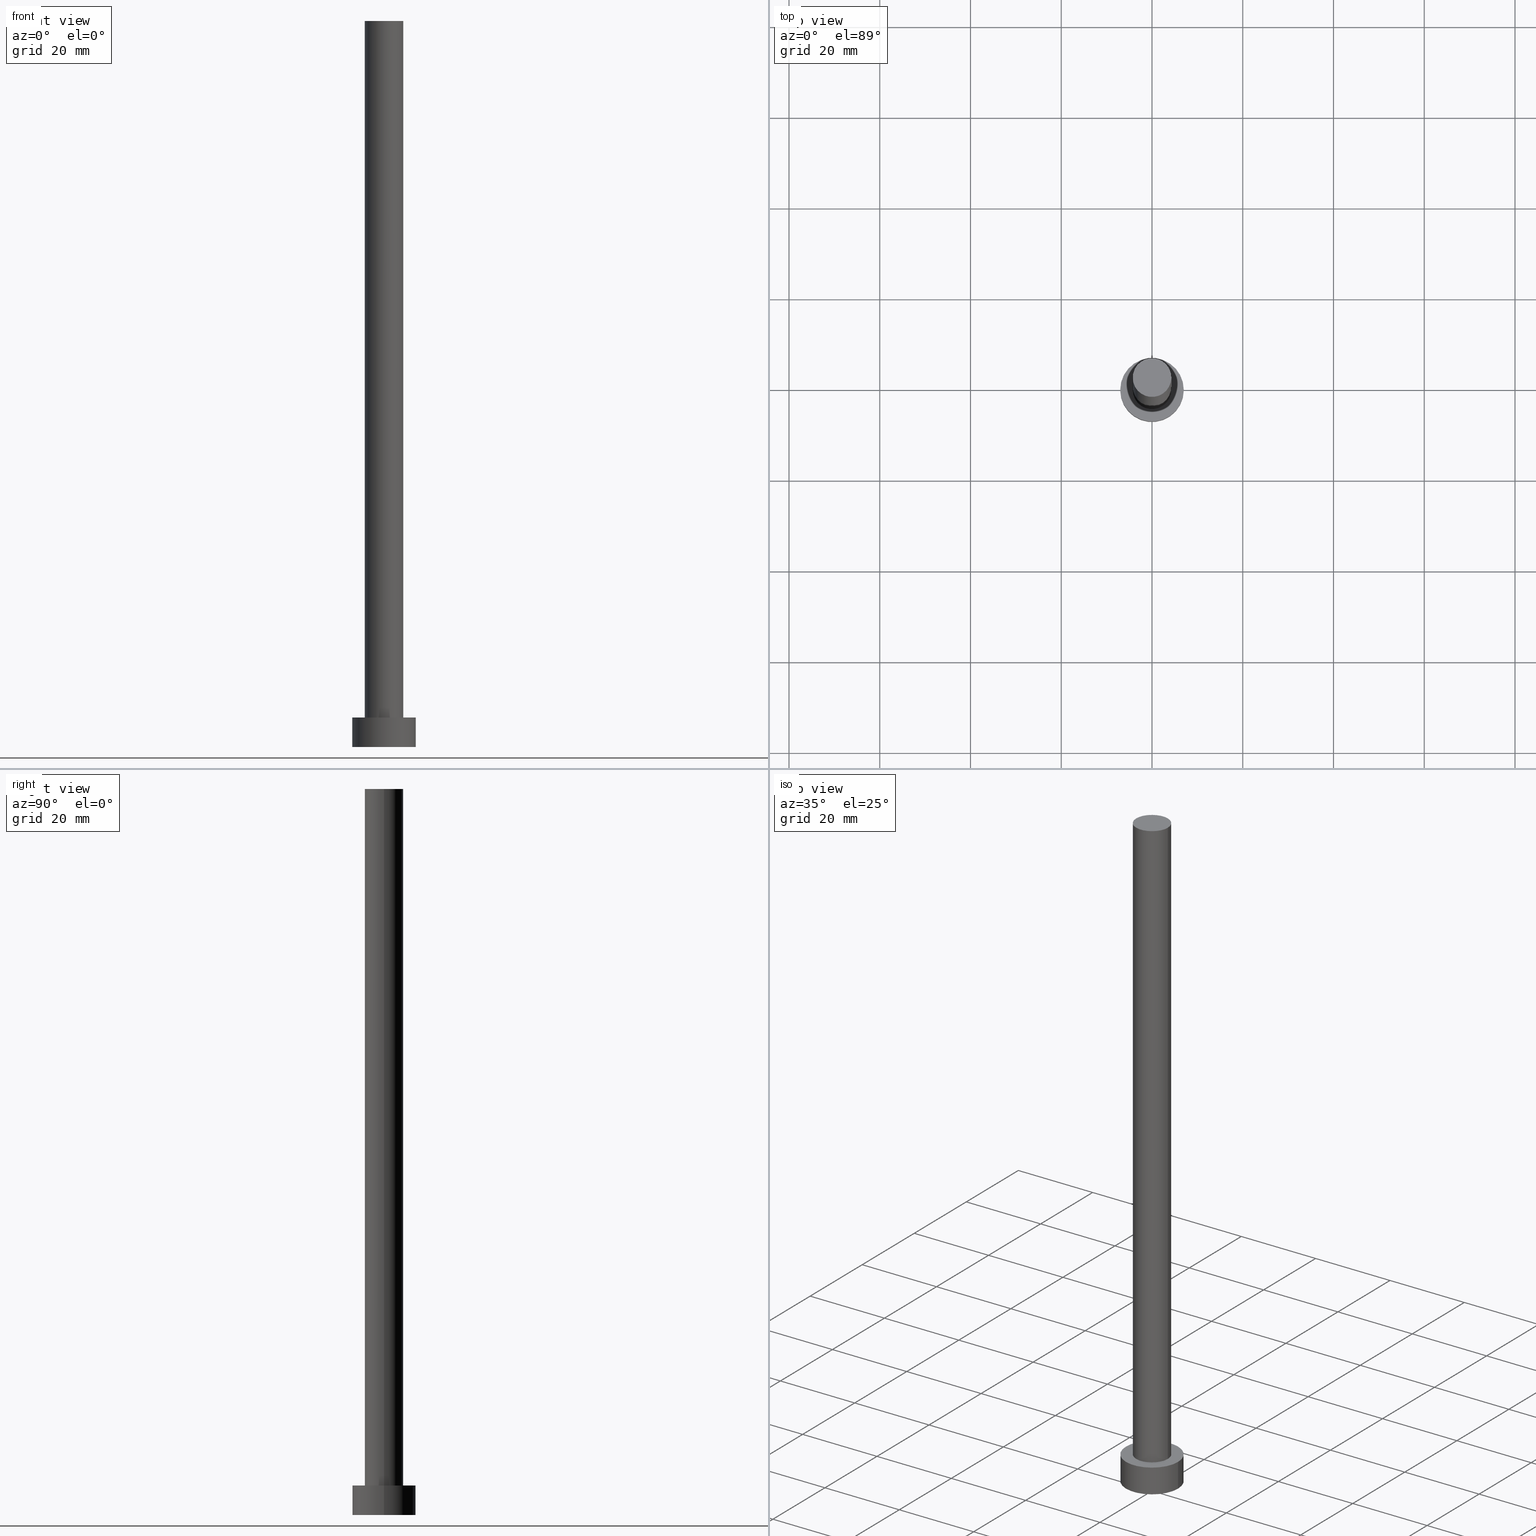
[diagram: canonical four-view strip — front | top / right | iso, engineering-drawing reading convention]
A machine part, canonical four-view strip (front | top / right | iso — engineering-drawing reading convention). The complete STEP part file that produces these views, byte-faithful:
ISO-10303-21;
HEADER;
FILE_DESCRIPTION (( 'STEP AP203' ),
    '1' );
FILE_NAME ('204a.STEP',
    '2023-02-13T13:48:37',
    ( '' ),
    ( '' ),
    'SwSTEP 2.0',
    'SolidWorks 2019',
    '' );
FILE_SCHEMA (( 'CONFIG_CONTROL_DESIGN' ));
ENDSEC;

DATA;
#1 = DIRECTION ( 'NONE',  ( 0.000000000000000000, 0.000000000000000000, 1.000000000000000000 ) ) ;
#2 = CC_DESIGN_PERSON_AND_ORGANIZATION_ASSIGNMENT ( #95, #231, ( #78 ) ) ;
#3 = PERSON ( 'NEUR�EN�', 'NEUR�EN�', 'NEUR�EN�', ('NEUR�EN�'), ('NEUR�EN�'), ('NEUR�EN�') ) ;
#4 = ORIENTED_EDGE ( 'NONE', *, *, #179, .F. ) ;
#5 = ORIENTED_EDGE ( 'NONE', *, *, #232, .T. ) ;
#6 = VERTEX_POINT ( 'NONE', #244 ) ;
#7 = ADVANCED_FACE ( 'NONE', ( #65 ), #26, .T. ) ;
#8 = CIRCLE ( 'NONE', #207, 4.250000000000000000 ) ;
#9 = PLANE ( 'NONE',  #253 ) ;
#10 = APPROVAL_ROLE ( '' ) ;
#11 = AXIS2_PLACEMENT_3D ( 'NONE', #165, #100, #216 ) ;
#12 = DIRECTION ( 'NONE',  ( 0.000000000000000000, 0.000000000000000000, 1.000000000000000000 ) ) ;
#13 = COORDINATED_UNIVERSAL_TIME_OFFSET ( 1, 0, .AHEAD. ) ;
#14 = CARTESIAN_POINT ( 'NONE',  ( 0.000000000000000000, 0.000000000000000000, 6.500000000000000000 ) ) ;
#15 = APPROVAL ( #224, 'NEUR�EN�' ) ;
#16 = VECTOR ( 'NONE', #151, 1000.000000000000000 ) ;
#17 = DIRECTION ( 'NONE',  ( 0.000000000000000000, 0.000000000000000000, 1.000000000000000000 ) ) ;
#18 = ADVANCED_FACE ( 'NONE', ( #109 ), #227, .T. ) ;
#19 = DIRECTION ( 'NONE',  ( 0.000000000000000000, 0.000000000000000000, 1.000000000000000000 ) ) ;
#20 = APPROVAL_PERSON_ORGANIZATION ( #60, #238, #97 ) ;
#21 = CARTESIAN_POINT ( 'NONE',  ( -4.250000000000000000, 0.000000000000000000, 160.0000000000000000 ) ) ;
#22 = AXIS2_PLACEMENT_3D ( 'NONE', #237, #144, #62 ) ;
#23 = VERTEX_POINT ( 'NONE', #132 ) ;
#24 = EDGE_LOOP ( 'NONE', ( #127, #149 ) ) ;
#25 = CC_DESIGN_DATE_AND_TIME_ASSIGNMENT ( #115, #225, ( #107 ) ) ;
#26 = CYLINDRICAL_SURFACE ( 'NONE', #252, 4.250000000000000000 ) ;
#27 = FACE_OUTER_BOUND ( 'NONE', #106, .T. ) ;
#28 = AXIS2_PLACEMENT_3D ( 'NONE', #118, #19, #163 ) ;
#29 = LOCAL_TIME ( 14, 48, 37.00000000000000000, #13 ) ;
#30 = CALENDAR_DATE ( 2023, 13, 2 ) ;
#31 = LINE ( 'NONE', #72, #164 ) ;
#32 = COORDINATED_UNIVERSAL_TIME_OFFSET ( 1, 0, .AHEAD. ) ;
#33 = ADVANCED_FACE ( 'NONE', ( #209 ), #251, .T. ) ;
#34 = DIRECTION ( 'NONE',  ( -1.000000000000000000, 0.000000000000000000, 0.000000000000000000 ) ) ;
#35 =( NAMED_UNIT ( * ) SI_UNIT ( $, .STERADIAN. ) SOLID_ANGLE_UNIT ( ) );
#36 = COORDINATED_UNIVERSAL_TIME_OFFSET ( 1, 0, .AHEAD. ) ;
#37 = DIRECTION ( 'NONE',  ( -1.000000000000000000, 0.000000000000000000, 0.000000000000000000 ) ) ;
#38 = DIRECTION ( 'NONE',  ( -0.000000000000000000, -0.000000000000000000, -1.000000000000000000 ) ) ;
#39 = SHAPE_DEFINITION_REPRESENTATION ( #162, #122 ) ;
#40 = FACE_OUTER_BOUND ( 'NONE', #188, .T. ) ;
#41 = LINE ( 'NONE', #21, #16 ) ;
#42 = ORIENTED_EDGE ( 'NONE', *, *, #91, .F. ) ;
#43 = CC_DESIGN_APPROVAL ( #238, ( #154 ) ) ;
#44 = CC_DESIGN_PERSON_AND_ORGANIZATION_ASSIGNMENT ( #59, #213, ( #154 ) ) ;
#45 = ORIENTED_EDGE ( 'NONE', *, *, #128, .F. ) ;
#46 = LOCAL_TIME ( 14, 48, 37.00000000000000000, #206 ) ;
#47 = VERTEX_POINT ( 'NONE', #67 ) ;
#48 = ADVANCED_FACE ( 'NONE', ( #89 ), #71, .T. ) ;
#49 = DIRECTION ( 'NONE',  ( -0.000000000000000000, -0.000000000000000000, -1.000000000000000000 ) ) ;
#50 = APPROVAL_STATUS ( 'not_yet_approved' ) ;
#51 =( NAMED_UNIT ( * ) PLANE_ANGLE_UNIT ( ) SI_UNIT ( $, .RADIAN. ) );
#52 = EDGE_CURVE ( 'NONE', #108, #243, #204, .T. ) ;
#53 = CARTESIAN_POINT ( 'NONE',  ( 0.000000000000000000, 0.000000000000000000, 0.000000000000000000 ) ) ;
#54 = CARTESIAN_POINT ( 'NONE',  ( 0.000000000000000000, 0.000000000000000000, 0.000000000000000000 ) ) ;
#55 = AXIS2_PLACEMENT_3D ( 'NONE', #14, #17, #176 ) ;
#56 = PRODUCT ( '204a', '204a', '', ( #208 ) ) ;
#57 = DATE_TIME_ROLE ( 'classification_date' ) ;
#58 = CARTESIAN_POINT ( 'NONE',  ( -7.000000000000000000, 0.000000000000000000, 6.500000000000000000 ) ) ;
#59 = PERSON_AND_ORGANIZATION ( #3, #241 ) ;
#60 = PERSON_AND_ORGANIZATION ( #3, #241 ) ;
#61 = CARTESIAN_POINT ( 'NONE',  ( 0.000000000000000000, 0.000000000000000000, 0.000000000000000000 ) ) ;
#62 = DIRECTION ( 'NONE',  ( 1.000000000000000000, 0.000000000000000000, 0.000000000000000000 ) ) ;
#63 = AXIS2_PLACEMENT_3D ( 'NONE', #61, #230, #120 ) ;
#64 = EDGE_LOOP ( 'NONE', ( #45, #169, #184, #185 ) ) ;
#65 = FACE_OUTER_BOUND ( 'NONE', #104, .T. ) ;
#66 = CALENDAR_DATE ( 2023, 13, 2 ) ;
#67 = CARTESIAN_POINT ( 'NONE',  ( -4.250000000000000000, 0.000000000000000000, 160.0000000000000000 ) ) ;
#68 = COORDINATED_UNIVERSAL_TIME_OFFSET ( 1, 0, .AHEAD. ) ;
#69 = AXIS2_PLACEMENT_3D ( 'NONE', #54, #136, #245 ) ;
#70 = PERSON_AND_ORGANIZATION_ROLE ( 'design_owner' ) ;
#71 = CYLINDRICAL_SURFACE ( 'NONE', #145, 4.250000000000000000 ) ;
#72 = CARTESIAN_POINT ( 'NONE',  ( 4.250000000000000000, 5.204748896376250699E-16, 160.0000000000000000 ) ) ;
#73 = CLOSED_SHELL ( 'NONE', ( #7, #148, #18, #81, #197, #48, #33 ) ) ;
#74 = PLANE ( 'NONE',  #28 ) ;
#75 = CALENDAR_DATE ( 2023, 13, 2 ) ;
#76 = DIRECTION ( 'NONE',  ( -0.000000000000000000, -0.000000000000000000, -1.000000000000000000 ) ) ;
#77 = SECURITY_CLASSIFICATION_LEVEL ( 'unclassified' ) ;
#78 = PRODUCT_DEFINITION_FORMATION_WITH_SPECIFIED_SOURCE ( 'LIBOVOLN�', '', #56, .NOT_KNOWN. ) ;
#79 = DIRECTION ( 'NONE',  ( -1.000000000000000000, 0.000000000000000000, 0.000000000000000000 ) ) ;
#80 = ORIENTED_EDGE ( 'NONE', *, *, #174, .F. ) ;
#81 = ADVANCED_FACE ( 'NONE', ( #121, #215 ), #74, .T. ) ;
#82 = ORIENTED_EDGE ( 'NONE', *, *, #161, .F. ) ;
#83 = APPLICATION_CONTEXT ( 'configuration controlled 3d designs of mechanical parts and assemblies' ) ;
#84 = EDGE_LOOP ( 'NONE', ( #125, #80 ) ) ;
#85 = CC_DESIGN_PERSON_AND_ORGANIZATION_ASSIGNMENT ( #92, #70, ( #56 ) ) ;
#86 = ORIENTED_EDGE ( 'NONE', *, *, #123, .F. ) ;
#87 = EDGE_CURVE ( 'NONE', #103, #242, #221, .T. ) ;
#88 =( LENGTH_UNIT ( ) NAMED_UNIT ( * ) SI_UNIT ( .MILLI., .METRE. ) );
#89 = FACE_OUTER_BOUND ( 'NONE', #168, .T. ) ;
#90 = DIRECTION ( 'NONE',  ( 1.000000000000000000, 0.000000000000000000, -0.000000000000000000 ) ) ;
#91 = EDGE_CURVE ( 'NONE', #47, #23, #173, .T. ) ;
#92 = PERSON_AND_ORGANIZATION ( #3, #241 ) ;
#93 = CARTESIAN_POINT ( 'NONE',  ( 0.000000000000000000, 0.000000000000000000, 160.0000000000000000 ) ) ;
#94 = CIRCLE ( 'NONE', #22, 4.250000000000000000 ) ;
#95 = PERSON_AND_ORGANIZATION ( #3, #241 ) ;
#96 = LINE ( 'NONE', #235, #131 ) ;
#97 = APPROVAL_ROLE ( '' ) ;
#98 = AXIS2_PLACEMENT_3D ( 'NONE', #114, #129, #205 ) ;
#99 = DIRECTION ( 'NONE',  ( 0.000000000000000000, 0.000000000000000000, 1.000000000000000000 ) ) ;
#100 = DIRECTION ( 'NONE',  ( 0.000000000000000000, 0.000000000000000000, 1.000000000000000000 ) ) ;
#101 = APPROVAL ( #50, 'NEUR�EN�' ) ;
#102 = ORIENTED_EDGE ( 'NONE', *, *, #157, .F. ) ;
#103 = VERTEX_POINT ( 'NONE', #138 ) ;
#104 = EDGE_LOOP ( 'NONE', ( #82, #219, #202, #4 ) ) ;
#105 = AXIS2_PLACEMENT_3D ( 'NONE', #249, #49, #34 ) ;
#106 = EDGE_LOOP ( 'NONE', ( #166, #239 ) ) ;
#107 = PRODUCT_DEFINITION ( 'NEZN�M�', '', #78, #236 ) ;
#108 = VERTEX_POINT ( 'NONE', #58 ) ;
#109 = FACE_OUTER_BOUND ( 'NONE', #64, .T. ) ;
#110 = DIRECTION ( 'NONE',  ( -0.000000000000000000, -0.000000000000000000, -1.000000000000000000 ) ) ;
#111 = CIRCLE ( 'NONE', #11, 7.000000000000000000 ) ;
#112 = EDGE_CURVE ( 'NONE', #222, #6, #139, .T. ) ;
#113 = DATE_AND_TIME ( #30, #46 ) ;
#114 = CARTESIAN_POINT ( 'NONE',  ( 0.000000000000000000, 0.000000000000000000, 160.0000000000000000 ) ) ;
#115 = DATE_AND_TIME ( #210, #234 ) ;
#116 = CARTESIAN_POINT ( 'NONE',  ( -4.250000000000000000, 0.000000000000000000, 6.500000000000000000 ) ) ;
#117 = CARTESIAN_POINT ( 'NONE',  ( 0.000000000000000000, 0.000000000000000000, 6.500000000000000000 ) ) ;
#118 = CARTESIAN_POINT ( 'NONE',  ( 0.000000000000000000, 0.000000000000000000, 6.500000000000000000 ) ) ;
#119 = APPROVAL_STATUS ( 'not_yet_approved' ) ;
#120 = DIRECTION ( 'NONE',  ( 1.000000000000000000, 0.000000000000000000, 0.000000000000000000 ) ) ;
#121 = FACE_BOUND ( 'NONE', #84, .T. ) ;
#122 = ADVANCED_BREP_SHAPE_REPRESENTATION ( '204a', ( #211, #186 ), #167 ) ;
#123 = EDGE_CURVE ( 'NONE', #108, #103, #96, .T. ) ;
#124 = DIRECTION ( 'NONE',  ( 1.000000000000000000, 0.000000000000000000, 0.000000000000000000 ) ) ;
#125 = ORIENTED_EDGE ( 'NONE', *, *, #112, .F. ) ;
#126 = ORIENTED_EDGE ( 'NONE', *, *, #128, .T. ) ;
#127 = ORIENTED_EDGE ( 'NONE', *, *, #91, .T. ) ;
#128 = EDGE_CURVE ( 'NONE', #243, #242, #137, .T. ) ;
#129 = DIRECTION ( 'NONE',  ( 0.000000000000000000, 0.000000000000000000, 1.000000000000000000 ) ) ;
#130 = DIRECTION ( 'NONE',  ( 0.000000000000000000, 0.000000000000000000, 1.000000000000000000 ) ) ;
#131 = VECTOR ( 'NONE', #76, 1000.000000000000000 ) ;
#132 = CARTESIAN_POINT ( 'NONE',  ( 4.250000000000000000, 5.204748896376250699E-16, 160.0000000000000000 ) ) ;
#133 = PRODUCT_RELATED_PRODUCT_CATEGORY ( 'detail', '', ( #56 ) ) ;
#134 = APPROVAL_DATE_TIME ( #228, #15 ) ;
#135 = DIRECTION ( 'NONE',  ( -0.000000000000000000, -0.000000000000000000, -1.000000000000000000 ) ) ;
#136 = DIRECTION ( 'NONE',  ( 0.000000000000000000, 0.000000000000000000, 1.000000000000000000 ) ) ;
#137 = LINE ( 'NONE', #142, #201 ) ;
#138 = CARTESIAN_POINT ( 'NONE',  ( -7.000000000000000000, 0.000000000000000000, 0.000000000000000000 ) ) ;
#139 = CIRCLE ( 'NONE', #55, 4.250000000000000000 ) ;
#140 = DATE_AND_TIME ( #75, #182 ) ;
#141 = AXIS2_PLACEMENT_3D ( 'NONE', #212, #38, #79 ) ;
#142 = CARTESIAN_POINT ( 'NONE',  ( 7.000000000000000000, 8.572527594031471218E-16, 6.500000000000000000 ) ) ;
#143 = PERSON_AND_ORGANIZATION ( #3, #241 ) ;
#144 = DIRECTION ( 'NONE',  ( 0.000000000000000000, 0.000000000000000000, 1.000000000000000000 ) ) ;
#145 = AXIS2_PLACEMENT_3D ( 'NONE', #158, #135, #37 ) ;
#146 = ORIENTED_EDGE ( 'NONE', *, *, #52, .T. ) ;
#147 = ORIENTED_EDGE ( 'NONE', *, *, #193, .F. ) ;
#148 = ADVANCED_FACE ( 'NONE', ( #40 ), #177, .T. ) ;
#149 = ORIENTED_EDGE ( 'NONE', *, *, #161, .T. ) ;
#150 = APPROVAL_PERSON_ORGANIZATION ( #153, #101, #10 ) ;
#151 = DIRECTION ( 'NONE',  ( -0.000000000000000000, -0.000000000000000000, -1.000000000000000000 ) ) ;
#152 = DIRECTION ( 'NONE',  ( 1.000000000000000000, 0.000000000000000000, 0.000000000000000000 ) ) ;
#153 = PERSON_AND_ORGANIZATION ( #3, #241 ) ;
#154 = SECURITY_CLASSIFICATION ( '', '', #77 ) ;
#155 = DIRECTION ( 'NONE',  ( -1.000000000000000000, 0.000000000000000000, 0.000000000000000000 ) ) ;
#156 = APPLICATION_PROTOCOL_DEFINITION ( 'international standard', 'config_control_design', 1994, #214 ) ;
#157 = EDGE_CURVE ( 'NONE', #243, #108, #111, .T. ) ;
#158 = CARTESIAN_POINT ( 'NONE',  ( 0.000000000000000000, 0.000000000000000000, 160.0000000000000000 ) ) ;
#159 = CARTESIAN_POINT ( 'NONE',  ( 0.000000000000000000, 0.000000000000000000, 0.000000000000000000 ) ) ;
#160 = APPROVAL_PERSON_ORGANIZATION ( #170, #15, #203 ) ;
#161 = EDGE_CURVE ( 'NONE', #23, #47, #8, .T. ) ;
#162 = PRODUCT_DEFINITION_SHAPE ( 'NONE', 'NONE',  #107 ) ;
#163 = DIRECTION ( 'NONE',  ( 1.000000000000000000, 0.000000000000000000, -0.000000000000000000 ) ) ;
#164 = VECTOR ( 'NONE', #110, 1000.000000000000000 ) ;
#165 = CARTESIAN_POINT ( 'NONE',  ( 0.000000000000000000, 0.000000000000000000, 6.500000000000000000 ) ) ;
#166 = ORIENTED_EDGE ( 'NONE', *, *, #87, .F. ) ;
#167 =( GEOMETRIC_REPRESENTATION_CONTEXT ( 3 ) GLOBAL_UNCERTAINTY_ASSIGNED_CONTEXT ( ( #187 ) ) GLOBAL_UNIT_ASSIGNED_CONTEXT ( ( #88, #51, #35 ) ) REPRESENTATION_CONTEXT ( 'NONE', 'WORKASPACE' ) );
#168 = EDGE_LOOP ( 'NONE', ( #147, #42, #200, #199 ) ) ;
#169 = ORIENTED_EDGE ( 'NONE', *, *, #52, .F. ) ;
#170 = PERSON_AND_ORGANIZATION ( #3, #241 ) ;
#171 = CARTESIAN_POINT ( 'NONE',  ( 0.000000000000000000, 0.000000000000000000, 160.0000000000000000 ) ) ;
#172 = DIRECTION ( 'NONE',  ( 0.000000000000000000, 0.000000000000000000, 1.000000000000000000 ) ) ;
#173 = CIRCLE ( 'NONE', #240, 4.250000000000000000 ) ;
#174 = EDGE_CURVE ( 'NONE', #6, #222, #94, .T. ) ;
#175 = CIRCLE ( 'NONE', #69, 7.000000000000000000 ) ;
#176 = DIRECTION ( 'NONE',  ( 1.000000000000000000, 0.000000000000000000, 0.000000000000000000 ) ) ;
#177 = CYLINDRICAL_SURFACE ( 'NONE', #141, 7.000000000000000000 ) ;
#178 = DATE_AND_TIME ( #233, #29 ) ;
#179 = EDGE_CURVE ( 'NONE', #47, #222, #41, .T. ) ;
#180 = DIRECTION ( 'NONE',  ( -0.000000000000000000, -0.000000000000000000, -1.000000000000000000 ) ) ;
#181 = APPROVAL_DATE_TIME ( #140, #238 ) ;
#182 = LOCAL_TIME ( 14, 48, 37.00000000000000000, #36 ) ;
#183 = EDGE_LOOP ( 'NONE', ( #146, #220 ) ) ;
#184 = ORIENTED_EDGE ( 'NONE', *, *, #123, .T. ) ;
#185 = ORIENTED_EDGE ( 'NONE', *, *, #87, .T. ) ;
#186 = AXIS2_PLACEMENT_3D ( 'NONE', #159, #172, #152 ) ;
#187 = UNCERTAINTY_MEASURE_WITH_UNIT (LENGTH_MEASURE( 1.000000000000000082E-05 ), #88, 'distance_accuracy_value', 'NONE');
#188 = EDGE_LOOP ( 'NONE', ( #102, #126, #5, #86 ) ) ;
#189 = PERSON_AND_ORGANIZATION_ROLE ( 'creator' ) ;
#190 = CARTESIAN_POINT ( 'NONE',  ( 7.000000000000000000, 8.572527594031471218E-16, 6.500000000000000000 ) ) ;
#191 = AXIS2_PLACEMENT_3D ( 'NONE', #117, #12, #255 ) ;
#192 = CC_DESIGN_SECURITY_CLASSIFICATION ( #154, ( #78 ) ) ;
#193 = EDGE_CURVE ( 'NONE', #23, #6, #31, .T. ) ;
#194 = APPROVAL_DATE_TIME ( #113, #101 ) ;
#195 = CC_DESIGN_APPROVAL ( #101, ( #78 ) ) ;
#196 = DIRECTION ( 'NONE',  ( 1.000000000000000000, 0.000000000000000000, 0.000000000000000000 ) ) ;
#197 = ADVANCED_FACE ( 'NONE', ( #27 ), #9, .F. ) ;
#198 = CARTESIAN_POINT ( 'NONE',  ( 0.000000000000000000, 0.000000000000000000, 160.0000000000000000 ) ) ;
#199 = ORIENTED_EDGE ( 'NONE', *, *, #112, .T. ) ;
#200 = ORIENTED_EDGE ( 'NONE', *, *, #179, .T. ) ;
#201 = VECTOR ( 'NONE', #180, 1000.000000000000000 ) ;
#202 = ORIENTED_EDGE ( 'NONE', *, *, #174, .T. ) ;
#203 = APPROVAL_ROLE ( '' ) ;
#204 = CIRCLE ( 'NONE', #191, 7.000000000000000000 ) ;
#205 = DIRECTION ( 'NONE',  ( 1.000000000000000000, 0.000000000000000000, -0.000000000000000000 ) ) ;
#206 = COORDINATED_UNIVERSAL_TIME_OFFSET ( 1, 0, .AHEAD. ) ;
#207 = AXIS2_PLACEMENT_3D ( 'NONE', #198, #1, #124 ) ;
#208 = MECHANICAL_CONTEXT ( 'NONE', #83, 'mechanical' ) ;
#209 = FACE_OUTER_BOUND ( 'NONE', #24, .T. ) ;
#210 = CALENDAR_DATE ( 2023, 13, 2 ) ;
#211 = MANIFOLD_SOLID_BREP ( 'P�idat vysunut�m3', #73 ) ;
#212 = CARTESIAN_POINT ( 'NONE',  ( 0.000000000000000000, 0.000000000000000000, 6.500000000000000000 ) ) ;
#213 = PERSON_AND_ORGANIZATION_ROLE ( 'classification_officer' ) ;
#214 = APPLICATION_CONTEXT ( 'configuration controlled 3d designs of mechanical parts and assemblies' ) ;
#215 = FACE_OUTER_BOUND ( 'NONE', #183, .T. ) ;
#216 = DIRECTION ( 'NONE',  ( 1.000000000000000000, 0.000000000000000000, 0.000000000000000000 ) ) ;
#217 = CC_DESIGN_DATE_AND_TIME_ASSIGNMENT ( #178, #57, ( #154 ) ) ;
#218 = CC_DESIGN_APPROVAL ( #15, ( #107 ) ) ;
#219 = ORIENTED_EDGE ( 'NONE', *, *, #193, .T. ) ;
#220 = ORIENTED_EDGE ( 'NONE', *, *, #157, .T. ) ;
#221 = CIRCLE ( 'NONE', #63, 7.000000000000000000 ) ;
#222 = VERTEX_POINT ( 'NONE', #116 ) ;
#223 = LOCAL_TIME ( 14, 48, 37.00000000000000000, #32 ) ;
#224 = APPROVAL_STATUS ( 'not_yet_approved' ) ;
#225 = DATE_TIME_ROLE ( 'creation_date' ) ;
#226 = CC_DESIGN_PERSON_AND_ORGANIZATION_ASSIGNMENT ( #143, #254, ( #78 ) ) ;
#227 = CYLINDRICAL_SURFACE ( 'NONE', #105, 7.000000000000000000 ) ;
#228 = DATE_AND_TIME ( #66, #223 ) ;
#229 = CC_DESIGN_PERSON_AND_ORGANIZATION_ASSIGNMENT ( #247, #189, ( #107 ) ) ;
#230 = DIRECTION ( 'NONE',  ( 0.000000000000000000, 0.000000000000000000, 1.000000000000000000 ) ) ;
#231 = PERSON_AND_ORGANIZATION_ROLE ( 'design_supplier' ) ;
#232 = EDGE_CURVE ( 'NONE', #242, #103, #175, .T. ) ;
#233 = CALENDAR_DATE ( 2023, 13, 2 ) ;
#234 = LOCAL_TIME ( 14, 48, 37.00000000000000000, #68 ) ;
#235 = CARTESIAN_POINT ( 'NONE',  ( -7.000000000000000000, 0.000000000000000000, 6.500000000000000000 ) ) ;
#236 = DESIGN_CONTEXT ( 'detailed design', #214, 'design' ) ;
#237 = CARTESIAN_POINT ( 'NONE',  ( 0.000000000000000000, 0.000000000000000000, 6.500000000000000000 ) ) ;
#238 = APPROVAL ( #119, 'NEUR�EN�' ) ;
#239 = ORIENTED_EDGE ( 'NONE', *, *, #232, .F. ) ;
#240 = AXIS2_PLACEMENT_3D ( 'NONE', #93, #99, #196 ) ;
#241 = ORGANIZATION ( 'NEUR�EN�', 'NEUR�EN�', '' ) ;
#242 = VERTEX_POINT ( 'NONE', #250 ) ;
#243 = VERTEX_POINT ( 'NONE', #190 ) ;
#244 = CARTESIAN_POINT ( 'NONE',  ( 4.250000000000000000, 5.204748896376250699E-16, 6.500000000000000000 ) ) ;
#245 = DIRECTION ( 'NONE',  ( 1.000000000000000000, 0.000000000000000000, 0.000000000000000000 ) ) ;
#246 = DIRECTION ( 'NONE',  ( -0.000000000000000000, -0.000000000000000000, -1.000000000000000000 ) ) ;
#247 = PERSON_AND_ORGANIZATION ( #3, #241 ) ;
#248 = APPLICATION_PROTOCOL_DEFINITION ( 'international standard', 'config_control_design', 1994, #83 ) ;
#249 = CARTESIAN_POINT ( 'NONE',  ( 0.000000000000000000, 0.000000000000000000, 6.500000000000000000 ) ) ;
#250 = CARTESIAN_POINT ( 'NONE',  ( 7.000000000000000000, 8.572527594031471218E-16, 0.000000000000000000 ) ) ;
#251 = PLANE ( 'NONE',  #98 ) ;
#252 = AXIS2_PLACEMENT_3D ( 'NONE', #171, #246, #155 ) ;
#253 = AXIS2_PLACEMENT_3D ( 'NONE', #53, #130, #90 ) ;
#254 = PERSON_AND_ORGANIZATION_ROLE ( 'creator' ) ;
#255 = DIRECTION ( 'NONE',  ( 1.000000000000000000, 0.000000000000000000, 0.000000000000000000 ) ) ;
ENDSEC;
END-ISO-10303-21;
